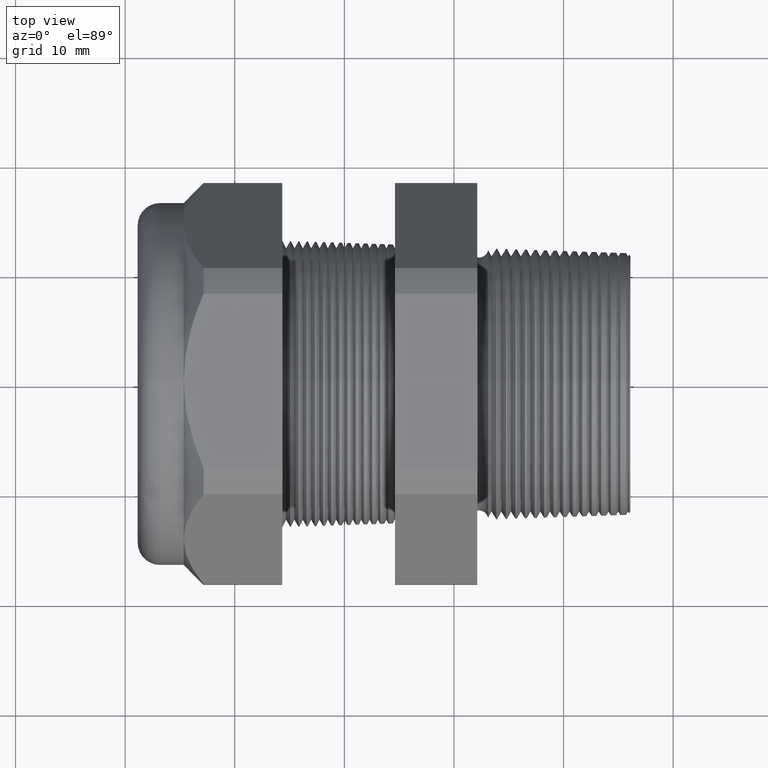
[diagram: clean part render]
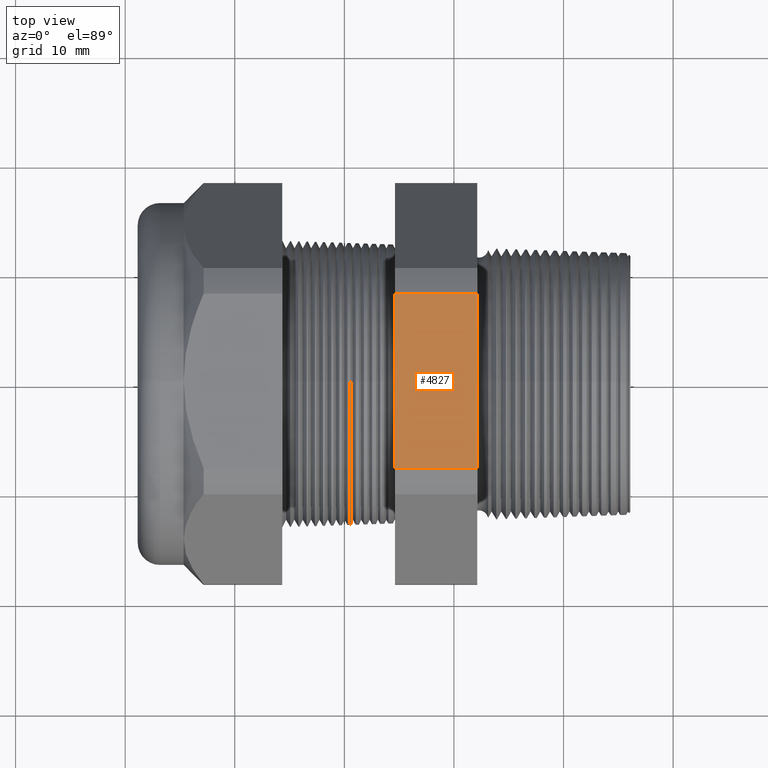
[diagram: same view with one face highlighted and labeled with its STEP entity id]
A machine part, top view. The second image highlights one B-rep face of the part: STEP entity #4827.
In plain terms, the highlighted planar face has unit normal (0, 0, 1).
Its self-contained STEP definition (entity closure, byte-faithful):
#1349 = DIRECTION ( 'NONE',  ( 0.0000000000000000000, -1.000000000000000000, 0.0000000000000000000 ) ) ;
#1350 = VECTOR ( 'NONE', #1349, 39.37007874015748100 ) ;
#1351 = CARTESIAN_POINT ( 'NONE',  ( -0.3100000000000000000, 1.300000000000000000, 0.6499999999999999100 ) ) ;
#1352 = LINE ( 'NONE', #1351, #1350 ) ;
#1353 = CARTESIAN_POINT ( 'NONE',  ( -0.3100000000000000000, 0.3131489262315937900, 0.6499999999999999100 ) ) ;
#1354 = CARTESIAN_POINT ( 'NONE',  ( -0.3100000000000000000, -0.3131489262315937400, 0.6500000000000000200 ) ) ;
#1739 = CARTESIAN_POINT ( 'NONE',  ( -0.6052755905511810800, -0.3131489262315937400, 0.6500000000000000200 ) ) ;
#1740 = DIRECTION ( 'NONE',  ( 0.0000000000000000000, 1.000000000000000000, 0.0000000000000000000 ) ) ;
#1741 = VECTOR ( 'NONE', #1740, 39.37007874015748100 ) ;
#1742 = CARTESIAN_POINT ( 'NONE',  ( -0.6052755905511810800, 1.300000000000000000, 0.6499999999999999100 ) ) ;
#1743 = LINE ( 'NONE', #1742, #1741 ) ;
#1744 = CARTESIAN_POINT ( 'NONE',  ( -0.6052755905511810800, 0.3131489262315937900, 0.6499999999999999100 ) ) ;
#1879 = CARTESIAN_POINT ( 'NONE',  ( 0.2400000000000001900, -0.3131489262315937900, 0.6499999999999999100 ) ) ;
#1880 = AXIS2_PLACEMENT_3D ( 'NONE', #1879, #1942, #1941 ) ;
#1881 = PLANE ( 'NONE',  #1880 ) ;
#1882 = FACE_OUTER_BOUND ( 'NONE', #4919, .T. ) ;
#1906 = DIRECTION ( 'NONE',  ( -1.000000000000000000, 0.0000000000000000000, 0.0000000000000000000 ) ) ;
#1907 = VECTOR ( 'NONE', #1906, 39.37007874015748100 ) ;
#1908 = CARTESIAN_POINT ( 'NONE',  ( 0.2400000000000001900, -0.3131489262315937400, 0.6500000000000000200 ) ) ;
#1909 = LINE ( 'NONE', #1908, #1907 ) ;
#1941 = DIRECTION ( 'NONE',  ( 1.000000000000000000, 0.0000000000000000000, 0.0000000000000000000 ) ) ;
#1942 = DIRECTION ( 'NONE',  ( 0.0000000000000000000, 0.0000000000000000000, 1.000000000000000000 ) ) ;
#2157 = DIRECTION ( 'NONE',  ( -1.000000000000000000, 0.0000000000000000000, 0.0000000000000000000 ) ) ;
#2158 = VECTOR ( 'NONE', #2157, 39.37007874015748100 ) ;
#2159 = CARTESIAN_POINT ( 'NONE',  ( 0.2400000000000001900, 0.3131489262315937900, 0.6499999999999999100 ) ) ;
#2164 = LINE ( 'NONE', #2159, #2158 ) ;
#4527 = VERTEX_POINT ( 'NONE', #1354 ) ;
#4528 = VERTEX_POINT ( 'NONE', #1353 ) ;
#4530 = EDGE_CURVE ( 'NONE', #4528, #4527, #1352, .T. ) ;
#4722 = VERTEX_POINT ( 'NONE', #1744 ) ;
#4724 = EDGE_CURVE ( 'NONE', #4726, #4722, #1743, .T. ) ;
#4726 = VERTEX_POINT ( 'NONE', #1739 ) ;
#4807 = ORIENTED_EDGE ( 'NONE', *, *, #4530, .F. ) ;
#4808 = EDGE_CURVE ( 'NONE', #4527, #4726, #1909, .T. ) ;
#4810 = ORIENTED_EDGE ( 'NONE', *, *, #4808, .F. ) ;
#4817 = ORIENTED_EDGE ( 'NONE', *, *, #4724, .F. ) ;
#4820 = ORIENTED_EDGE ( 'NONE', *, *, #4952, .T. ) ;
#4827 = ADVANCED_FACE ( 'NONE', ( #1882 ), #1881, .T. ) ;
#4919 = EDGE_LOOP ( 'NONE', ( #4820, #4817, #4810, #4807 ) ) ;
#4952 = EDGE_CURVE ( 'NONE', #4528, #4722, #2164, .T. ) ;